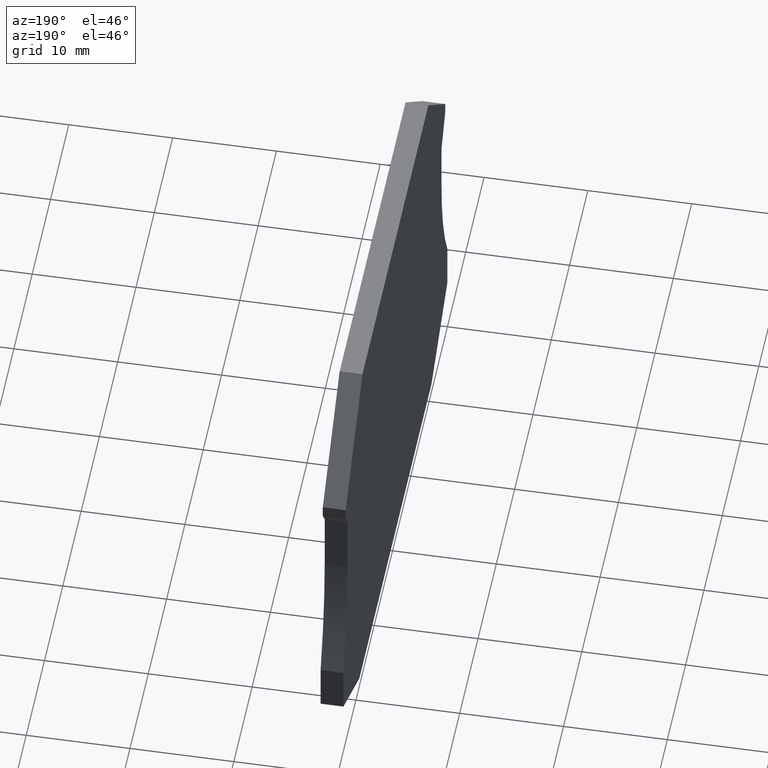
[diagram: clean part render]
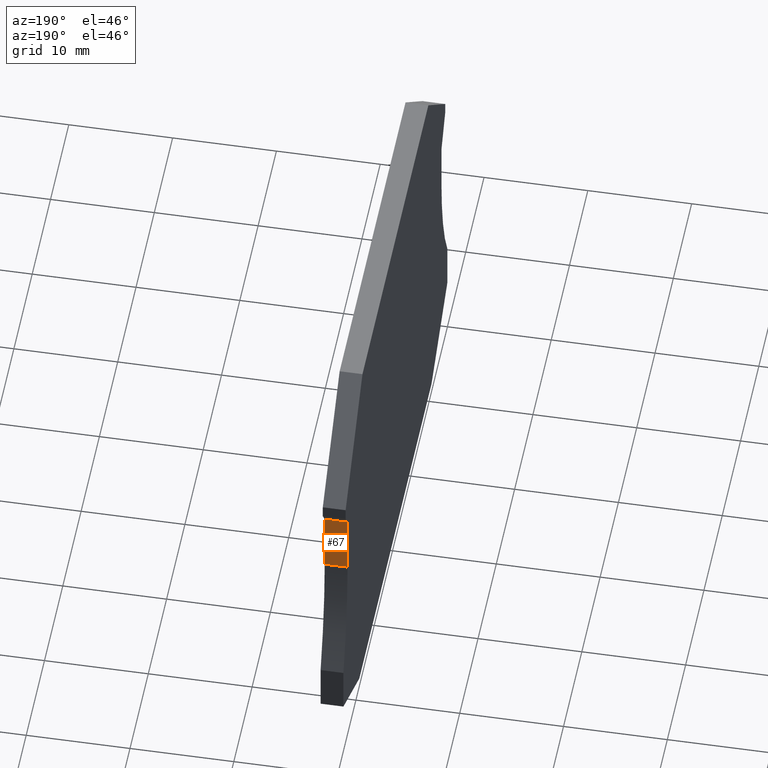
[diagram: same view with one face highlighted and labeled with its STEP entity id]
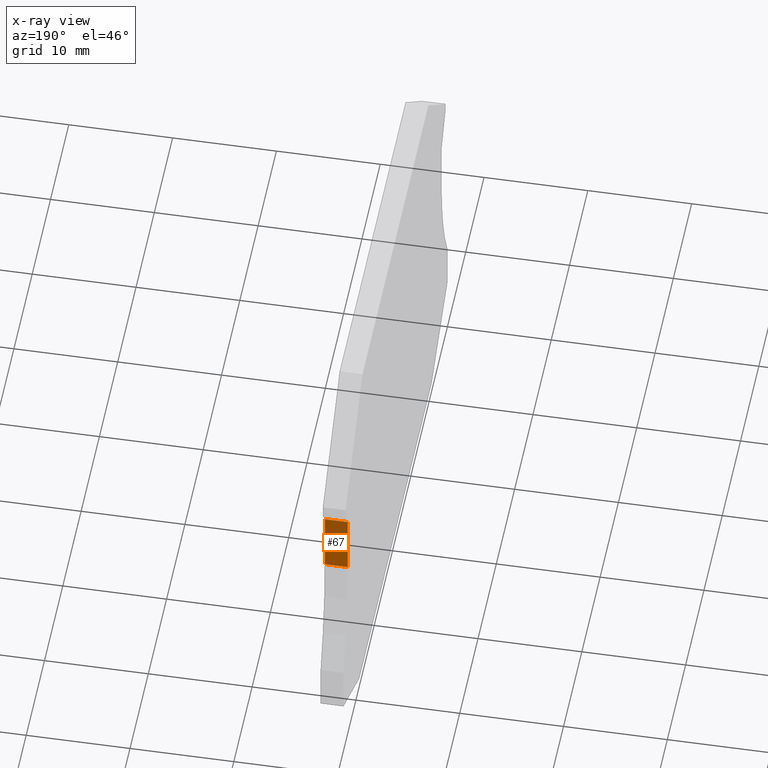
[diagram: x-ray of the same camera — body ghosted, the highlighted face saturated]
A machine part, auxiliary view. The second image highlights one B-rep face of the part: STEP entity #67.
The next image is the same camera in x-ray: the body ghosted, the highlighted face saturated — about 0% of this face is hidden behind the body in this view.
In plain terms, the highlighted planar face has unit normal (0, 1, 0).
Its self-contained STEP definition (entity closure, byte-faithful):
#67=ADVANCED_FACE('',(#133),#134,.T.);
#133=FACE_OUTER_BOUND('',#195,.T.);
#134=PLANE('',#196);
#195=EDGE_LOOP('',(#323,#324,#325,#326));
#196=AXIS2_PLACEMENT_3D('',#327,#328,#329);
#323=ORIENTED_EDGE('',*,*,#394,.T.);
#324=ORIENTED_EDGE('',*,*,#433,.T.);
#325=ORIENTED_EDGE('',*,*,#436,.T.);
#326=ORIENTED_EDGE('',*,*,#437,.F.);
#327=CARTESIAN_POINT('',(2.20000000000015,54.5499999999995,21.7621318441144));
#328=DIRECTION('',(0.0,1.0,1.05655906439346E-014));
#329=DIRECTION('',(-1.05655906439346E-014,-1.05655906439346E-014,1.0));
#394=EDGE_CURVE('',#472,#470,#473,.T.);
#433=EDGE_CURVE('',#470,#528,#529,.T.);
#436=EDGE_CURVE('',#528,#532,#533,.T.);
#437=EDGE_CURVE('',#472,#532,#534,.T.);
#470=VERTEX_POINT('',#577);
#472=VERTEX_POINT('',#580);
#473=LINE('',#581,#582);
#528=VERTEX_POINT('',#662);
#529=LINE('',#663,#664);
#532=VERTEX_POINT('',#668);
#533=LINE('',#669,#670);
#534=LINE('',#671,#672);
#577=CARTESIAN_POINT('',(2.12172912172405E-017,54.5499999999994,27.9004445929237));
#580=CARTESIAN_POINT('',(-1.98256296288709E-016,54.5499999999995,21.7621318441143));
#581=CARTESIAN_POINT('',(3.73408332937063E-014,54.5499999999991,58.2500000000074));
#582=VECTOR('',#704,1.0);
#662=CARTESIAN_POINT('',(2.20000000000009,54.5499999999994,27.9004445929238));
#663=CARTESIAN_POINT('',(8.14962832058672E-014,54.5499999999994,27.9004445929237));
#664=VECTOR('',#736,1.0);
#668=CARTESIAN_POINT('',(2.20000000000015,54.5499999999995,21.7621318441144));
#669=CARTESIAN_POINT('',(2.20000000000013,54.5499999999994,24.3638730000074));
#670=VECTOR('',#738,1.0);
#671=CARTESIAN_POINT('',(1.36581220337531E-013,54.5499999999995,21.7621318441143));
#672=VECTOR('',#739,1.0);
#704=DIRECTION('',(0.0,-1.05655906439346E-014,1.0));
#736=DIRECTION('',(1.0,-1.11631705655199E-028,1.05655906439346E-014));
#738=DIRECTION('',(1.05655906439346E-014,1.05655906439346E-014,-1.0));
#739=DIRECTION('',(1.0,-1.11631705655199E-028,1.05655906439346E-014));